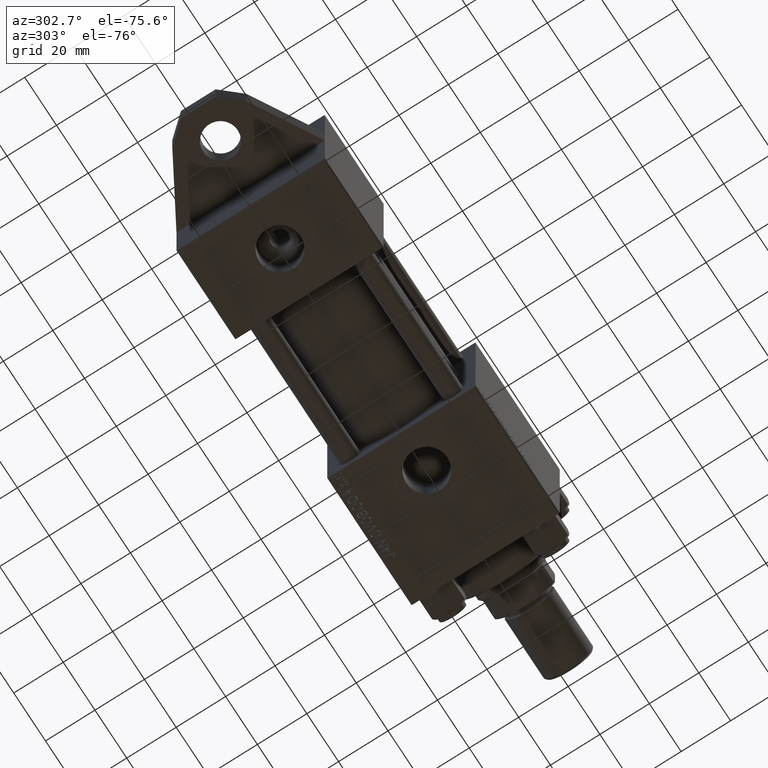
[diagram: clean part render]
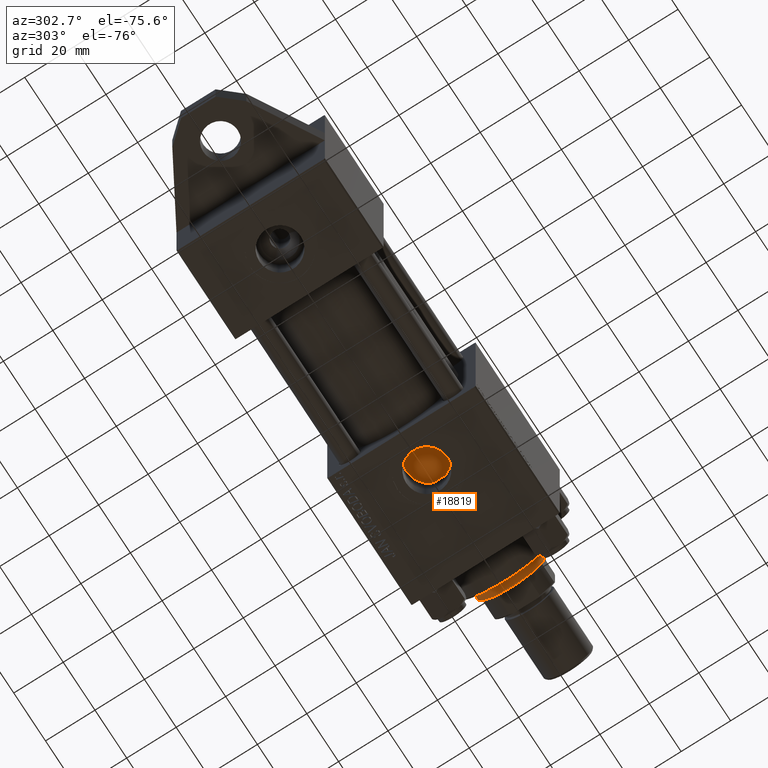
[diagram: same view with one face highlighted and labeled with its STEP entity id]
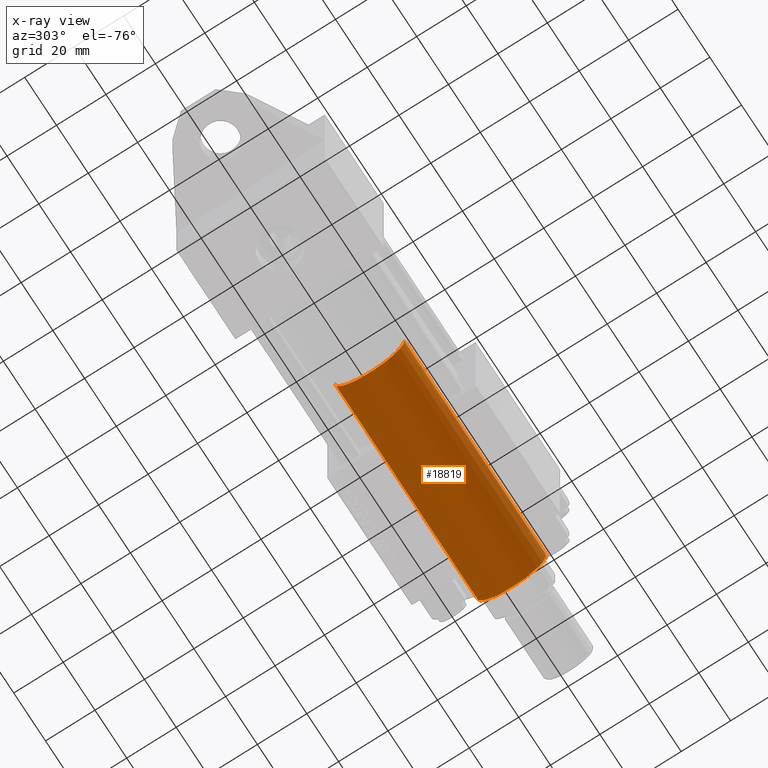
[diagram: x-ray of the same camera — body ghosted, the highlighted face saturated]
A machine part, auxiliary view. The second image highlights one B-rep face of the part: STEP entity #18819.
The next image is the same camera in x-ray: the body ghosted, the highlighted face saturated — about 3% of this face is hidden behind the body in this view.
In plain terms, the highlighted cylindrical surface (partial cylindrical patch) has radius 14 mm, axis along (-1, -0, 0).
Its self-contained STEP definition (entity closure, byte-faithful):
#353 = CIRCLE ( 'NONE', #26647, 14.00000000000000178 ) ;
#515 = EDGE_LOOP ( 'NONE', ( #43425, #42618, #45062, #16224 ) ) ;
#526 = CARTESIAN_POINT ( 'NONE',  ( 14.00000000000000178, 1.714505518806294441E-15, 127.5000000000000853 ) ) ;
#4813 = VERTEX_POINT ( 'NONE', #526 ) ;
#5263 = CARTESIAN_POINT ( 'NONE',  ( 0.000000000000000000, 0.000000000000000000, 38.00000000000000000 ) ) ;
#7239 = AXIS2_PLACEMENT_3D ( 'NONE', #45614, #30573, #35275 ) ;
#11057 = AXIS2_PLACEMENT_3D ( 'NONE', #5263, #44994, #15839 ) ;
#11949 = EDGE_CURVE ( 'NONE', #12231, #4813, #353, .T. ) ;
#12231 = VERTEX_POINT ( 'NONE', #45046 ) ;
#12932 = CYLINDRICAL_SURFACE ( 'NONE', #7239, 14.00000000000000178 ) ;
#14916 = EDGE_CURVE ( 'NONE', #4813, #21597, #16339, .T. ) ;
#15839 = DIRECTION ( 'NONE',  ( 1.000000000000000000, 0.000000000000000000, 0.000000000000000000 ) ) ;
#16224 = ORIENTED_EDGE ( 'NONE', *, *, #17079, .F. ) ;
#16339 = LINE ( 'NONE', #44798, #43982 ) ;
#17079 = EDGE_CURVE ( 'NONE', #12231, #24221, #26454, .T. ) ;
#18819 = ADVANCED_FACE ( 'NONE', ( #41620 ), #12932, .T. ) ;
#21597 = VERTEX_POINT ( 'NONE', #25058 ) ;
#21668 = EDGE_CURVE ( 'NONE', #21597, #24221, #33560, .T. ) ;
#22691 = DIRECTION ( 'NONE',  ( -0.000000000000000000, -0.000000000000000000, -1.000000000000000000 ) ) ;
#24221 = VERTEX_POINT ( 'NONE', #41845 ) ;
#25058 = CARTESIAN_POINT ( 'NONE',  ( 14.00000000000000178, 1.714505518806294441E-15, 38.00000000000000000 ) ) ;
#26454 = LINE ( 'NONE', #33738, #37192 ) ;
#26647 = AXIS2_PLACEMENT_3D ( 'NONE', #45799, #42753, #28647 ) ;
#26932 = DIRECTION ( 'NONE',  ( -0.000000000000000000, -0.000000000000000000, -1.000000000000000000 ) ) ;
#28647 = DIRECTION ( 'NONE',  ( 1.000000000000000000, 0.000000000000000000, 0.000000000000000000 ) ) ;
#30573 = DIRECTION ( 'NONE',  ( -0.000000000000000000, -0.000000000000000000, -1.000000000000000000 ) ) ;
#33560 = CIRCLE ( 'NONE', #11057, 14.00000000000000178 ) ;
#33738 = CARTESIAN_POINT ( 'NONE',  ( -14.00000000000000178, 0.000000000000000000, 128.0000000000000000 ) ) ;
#35275 = DIRECTION ( 'NONE',  ( -1.000000000000000000, 0.000000000000000000, 0.000000000000000000 ) ) ;
#37192 = VECTOR ( 'NONE', #22691, 1000.000000000000000 ) ;
#41620 = FACE_OUTER_BOUND ( 'NONE', #515, .T. ) ;
#41845 = CARTESIAN_POINT ( 'NONE',  ( -14.00000000000000178, 0.000000000000000000, 38.00000000000000000 ) ) ;
#42618 = ORIENTED_EDGE ( 'NONE', *, *, #14916, .T. ) ;
#42753 = DIRECTION ( 'NONE',  ( 0.000000000000000000, 0.000000000000000000, -1.000000000000000000 ) ) ;
#43425 = ORIENTED_EDGE ( 'NONE', *, *, #11949, .T. ) ;
#43982 = VECTOR ( 'NONE', #26932, 1000.000000000000000 ) ;
#44798 = CARTESIAN_POINT ( 'NONE',  ( 14.00000000000000178, 1.714505518806294441E-15, 128.0000000000000000 ) ) ;
#44994 = DIRECTION ( 'NONE',  ( 0.000000000000000000, 0.000000000000000000, 1.000000000000000000 ) ) ;
#45046 = CARTESIAN_POINT ( 'NONE',  ( -14.00000000000000178, 0.000000000000000000, 127.5000000000000853 ) ) ;
#45062 = ORIENTED_EDGE ( 'NONE', *, *, #21668, .T. ) ;
#45614 = CARTESIAN_POINT ( 'NONE',  ( 0.000000000000000000, 0.000000000000000000, 128.0000000000000000 ) ) ;
#45799 = CARTESIAN_POINT ( 'NONE',  ( 0.000000000000000000, 0.000000000000000000, 127.5000000000000853 ) ) ;